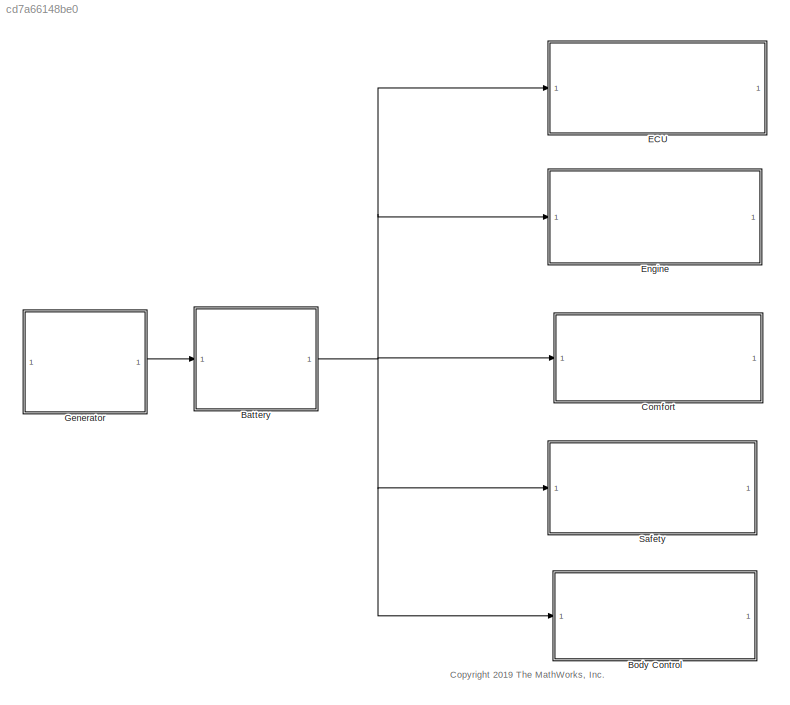
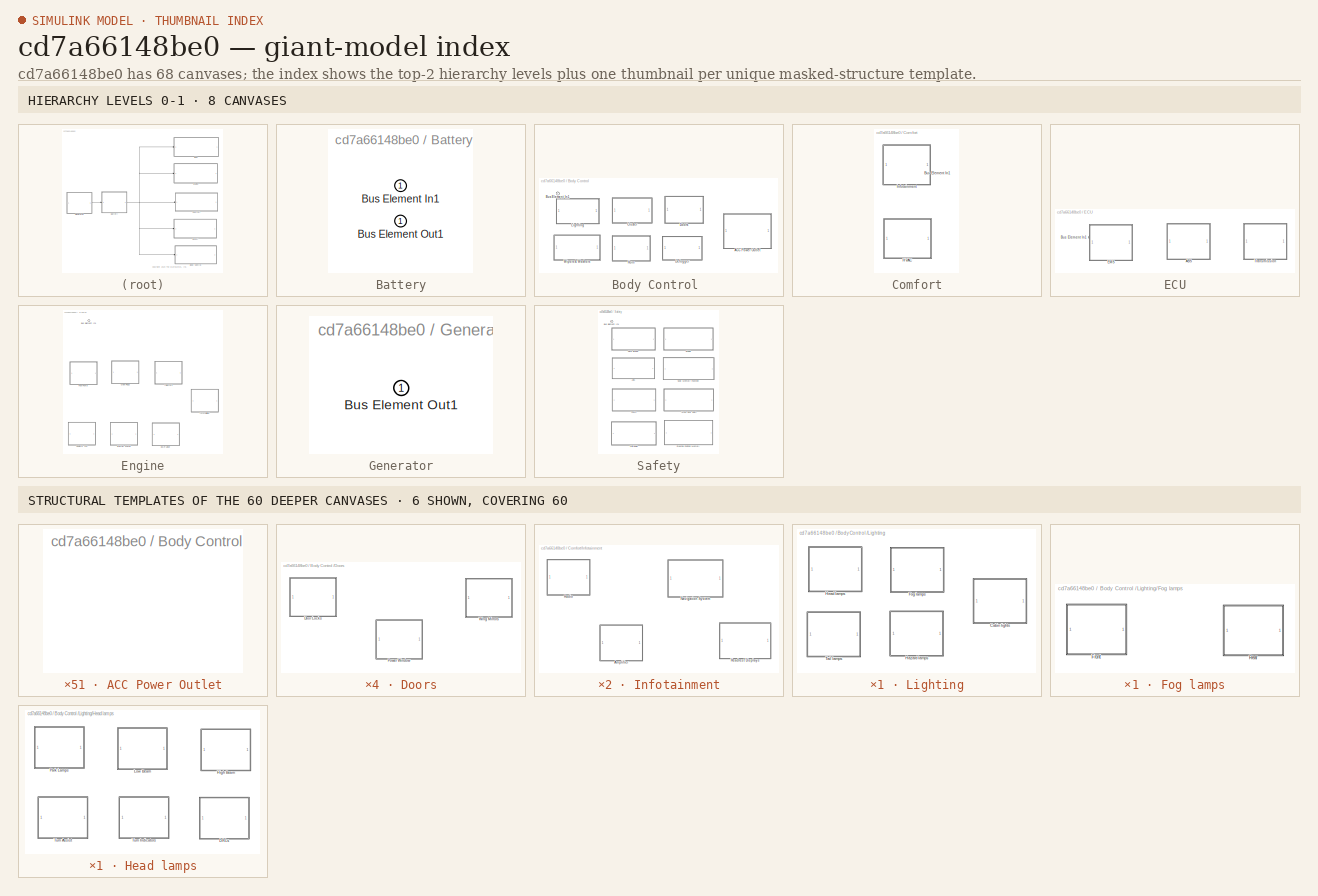
[diagram: thumbnail index - top-2 hierarchy levels (8 canvases) + 6 structural-template representatives of the remaining 60 canvases]
MODEL slx_cd7a66148be0
KIND model
CONFIG AbsTol = auto
CONFIG EnableMultiTasking = off
CONFIG FixedStep = auto
CONFIG MaxStep = auto
CONFIG MinStep = auto
CONFIG RelTol = 1e-3
CONFIG SampleTimeConstraint = Unconstrained
CONFIG SolverName = VariableStepAuto
CONFIG StartTime = 0.0
CONFIG StopTime = 10.0
BLOCK [SubSystem] Battery
  PortSchema = {"entries":[{"content":{"headerSize":26,"margin":15,"minimumSpacing":25,"sides":[{"content":{"connectorIds":["In1"]},"type":"ConnectorPlacement.EquallySpacedRectSide","uuid":"3d65bb45-329f-4bcb-b2ca-42a1dcaed35c"},{"content":{"connectorIds":["Out1"],"side":"RIGHT"},"type":"ConnectorPlacement.EquallySpacedRectSide","uuid":"712ce926-4e36-4f57-ab01-804e3d1e4b50"},{"content":{"connectorIds":[],"side":...<+295ch>
BLOCK [Inport] Battery/Bus Element In1
BLOCK [Outport] Battery/Bus Element Out1
  VectorParamsAs1DForOutWhenUnconnected = off
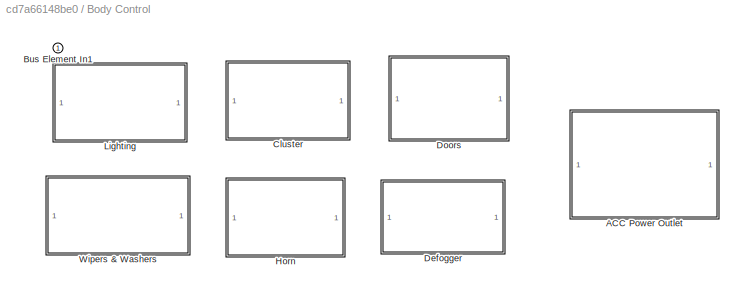
BLOCK [SubSystem] Body Control 
  PortSchema = {"entries":[{"content":{"headerSize":26,"margin":15,"minimumSpacing":25,"sides":[{"content":{"connectorIds":["In1"]},"type":"ConnectorPlacement.EquallySpacedRectSide","uuid":"3d65bb45-329f-4bcb-b2ca-42a1dcaed35c"},{"content":{"connectorIds":[],"side":"RIGHT"},"type":"ConnectorPlacement.EquallySpacedRectSide","uuid":"712ce926-4e36-4f57-ab01-804e3d1e4b50"},{"content":{"connectorIds":[],"side":"TOP"}...<+289ch>  <repeated x5 — deduplicated; at blocks: Body Control, Comfort, ECU, Engine, Safety>
BLOCK [SubSystem] Body Control /ACC Power Outlet
  PortSchema = {"entries":[{"content":{"headerSize":26,"margin":15,"minimumSpacing":25,"sides":[{"content":{"connectorIds":[]},"type":"ConnectorPlacement.EquallySpacedRectSide","uuid":"3d65bb45-329f-4bcb-b2ca-42a1dcaed35c"},{"content":{"connectorIds":[],"side":"RIGHT"},"type":"ConnectorPlacement.EquallySpacedRectSide","uuid":"712ce926-4e36-4f57-ab01-804e3d1e4b50"},{"content":{"connectorIds":[],"side":"TOP"},"typ...<+284ch>  <repeated x58 — deduplicated; at blocks: ACC Power Outlet, Cluster, Defogger, Door Locks, Power Window, Horn, Lighting, Cabin lights, Boot, Door Ajar, Front, Rear, Fog lamps, Hazard lamps, Head lamps, DRLs, +37 more>
BLOCK [Inport] Body Control /Bus Element In1
BLOCK [SubSystem] Body Control /Cluster
BLOCK [SubSystem] Body Control /Defogger
BLOCK [SubSystem] Body Control /Doors
  PortSchema = {"entries":[{"content":{"headerSize":26,"margin":15,"minimumSpacing":25,"sides":[{"content":{"connectorIds":[]},"type":"ConnectorPlacement.EquallySpacedRectSide","uuid":"3d65bb45-329f-4bcb-b2ca-42a1dcaed35c"},{"content":{"connectorIds":[],"side":"RIGHT"},"type":"ConnectorPlacement.EquallySpacedRectSide","uuid":"712ce926-4e36-4f57-ab01-804e3d1e4b50"},{"content":{"connectorIds":[],"side":"TOP"},"typ...<+428ch>
BLOCK [SubSystem] Body Control /Doors/Door Locks
BLOCK [SubSystem] Body Control /Doors/Power Window
BLOCK [SubSystem] Body Control /Doors/Wing Mirrors
  PortSchema = {"entries":[{"content":{"headerSize":26,"margin":15,"minimumSpacing":25,"sides":[{"content":{"connectorIds":[]},"type":"ConnectorPlacement.EquallySpacedRectSide","uuid":"15eb8315-af7f-4d63-91a7-8b392759bd72"},{"content":{"connectorIds":[],"side":"RIGHT"},"type":"ConnectorPlacement.EquallySpacedRectSide","uuid":"41c09cda-5e93-4405-9272-eb6fcc03707b"},{"content":{"connectorIds":[],"side":"TOP"},"typ...<+284ch>
BLOCK [SubSystem] Body Control /Horn
BLOCK [SubSystem] Body Control /Lighting
BLOCK [SubSystem] Body Control /Lighting/Cabin lights
BLOCK [SubSystem] Body Control /Lighting/Cabin lights/Boot
BLOCK [SubSystem] Body Control /Lighting/Cabin lights/Door Ajar
BLOCK [SubSystem] Body Control /Lighting/Cabin lights/Front
BLOCK [SubSystem] Body Control /Lighting/Cabin lights/Rear
BLOCK [SubSystem] Body Control /Lighting/Fog lamps
BLOCK [SubSystem] Body Control /Lighting/Fog lamps/Front
BLOCK [SubSystem] Body Control /Lighting/Fog lamps/Rear
BLOCK [SubSystem] Body Control /Lighting/Hazard lamps
BLOCK [SubSystem] Body Control /Lighting/Head lamps
BLOCK [SubSystem] Body Control /Lighting/Head lamps/DRLs
BLOCK [SubSystem] Body Control /Lighting/Head lamps/High Beam
BLOCK [SubSystem] Body Control /Lighting/Head lamps/Low Beam
BLOCK [SubSystem] Body Control /Lighting/Head lamps/Park Lamps
BLOCK [SubSystem] Body Control /Lighting/Head lamps/Turn Assist
BLOCK [SubSystem] Body Control /Lighting/Head lamps/Turn Indicators
BLOCK [SubSystem] Body Control /Lighting/Tail lamps
BLOCK [SubSystem] Body Control /Lighting/Tail lamps/Brake lights
BLOCK [SubSystem] Body Control /Lighting/Tail lamps/Reversing lamps
BLOCK [SubSystem] Body Control /Lighting/Tail lamps/Tail lights
BLOCK [SubSystem] Body Control /Wipers & Washers
BLOCK [SubSystem] Body Control /Wipers & Washers/Head lamps
BLOCK [SubSystem] Body Control /Wipers & Washers/Tail gate
BLOCK [SubSystem] Body Control /Wipers & Washers/Wind Screen
BLOCK [SubSystem] Comfort
BLOCK [Inport] Comfort/Bus Element In1
BLOCK [SubSystem] Comfort/HVAC
BLOCK [SubSystem] Comfort/HVAC/Blower
BLOCK [SubSystem] Comfort/HVAC/Climate Control
BLOCK [SubSystem] Comfort/HVAC/Radiator Fan
BLOCK [SubSystem] Comfort/Infotainment
BLOCK [SubSystem] Comfort/Infotainment/Amplifier
BLOCK [SubSystem] Comfort/Infotainment/Headrest Displays
BLOCK [SubSystem] Comfort/Infotainment/Navigation System
BLOCK [SubSystem] Comfort/Infotainment/Radio
BLOCK [SubSystem] ECU
BLOCK [SubSystem] ECU/ABS
BLOCK [Inport] ECU/Bus Element In1
BLOCK [SubSystem] ECU/EMS
BLOCK [SubSystem] ECU/Transmission
BLOCK [SubSystem] Engine
BLOCK [Inport] Engine/Bus Element In1
BLOCK [SubSystem] Engine/EGR Valve
BLOCK [SubSystem] Engine/Fuel Pump
BLOCK [SubSystem] Engine/Glow Plugs
BLOCK [SubSystem] Engine/Immobilizer
BLOCK [SubSystem] Engine/Injectors
BLOCK [SubSystem] Engine/Radiator Fan
BLOCK [SubSystem] Engine/Starter Motor
BLOCK [SubSystem] Generator
  PortSchema = {"entries":[{"content":{"headerSize":26,"margin":15,"minimumSpacing":25,"sides":[{"content":{"connectorIds":[]},"type":"ConnectorPlacement.EquallySpacedRectSide","uuid":"3d65bb45-329f-4bcb-b2ca-42a1dcaed35c"},{"content":{"connectorIds":["Out1"],"side":"RIGHT"},"type":"ConnectorPlacement.EquallySpacedRectSide","uuid":"712ce926-4e36-4f57-ab01-804e3d1e4b50"},{"content":{"connectorIds":[],"side":"TOP"...<+434ch>
BLOCK [Outport] Generator/Bus Element Out1
  VectorParamsAs1DForOutWhenUnconnected = off
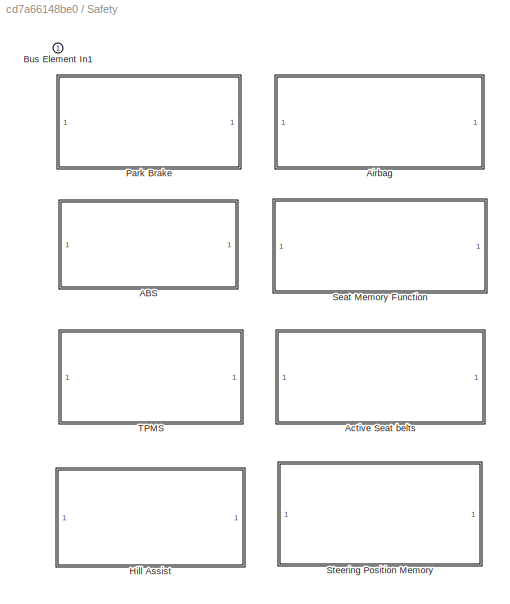
BLOCK [SubSystem] Safety
BLOCK [SubSystem] Safety/ABS
BLOCK [SubSystem] Safety/Active Seat belts
BLOCK [SubSystem] Safety/Airbag
BLOCK [Inport] Safety/Bus Element In1
BLOCK [SubSystem] Safety/Hill Assist
BLOCK [SubSystem] Safety/Park Brake
BLOCK [SubSystem] Safety/Seat Memory Function
BLOCK [SubSystem] Safety/Steering Position Memory
BLOCK [SubSystem] Safety/TPMS
ANNOTATION (root): <copyright redacted>
NET Battery:1 -> Body Control :1, Comfort:1, ECU:1, Engine:1, Safety:1
LINE Generator:1 -> Battery:1
note: NET lines group one-source signal fan-out (src -> all destinations, sorted); 1:1 wires keep LINE
